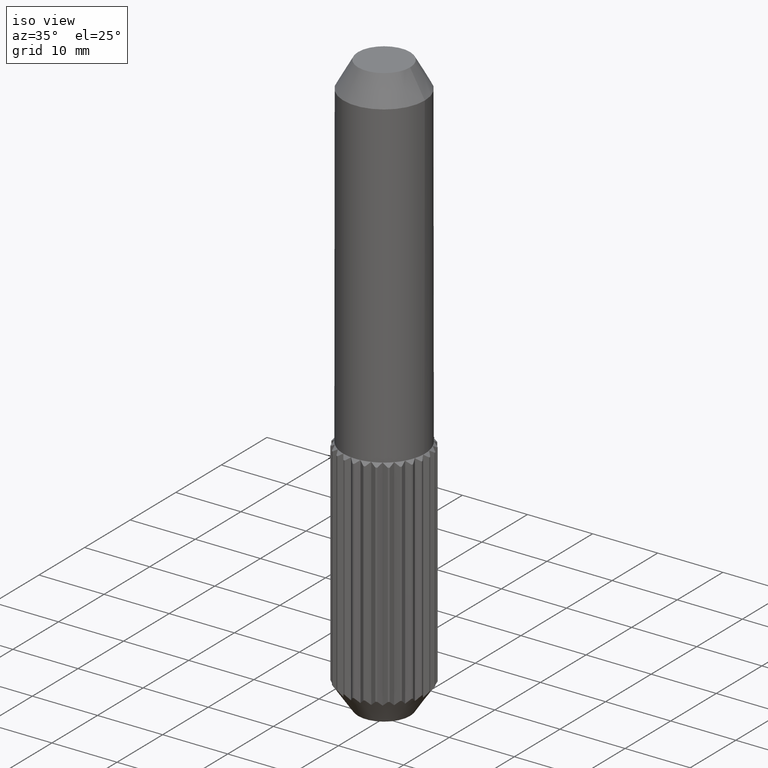
[diagram: clean part render]
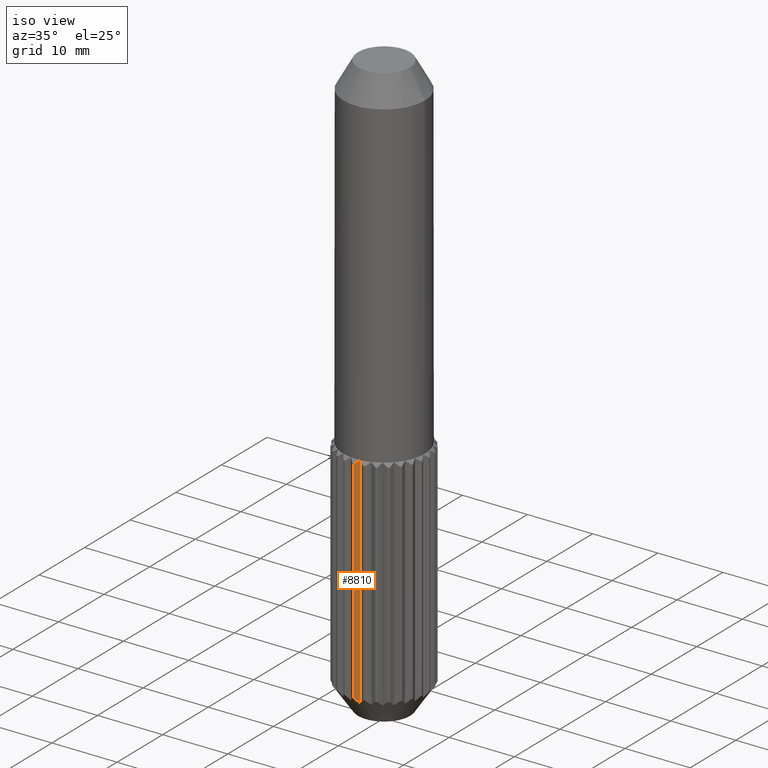
[diagram: same view with one face highlighted and labeled with its STEP entity id]
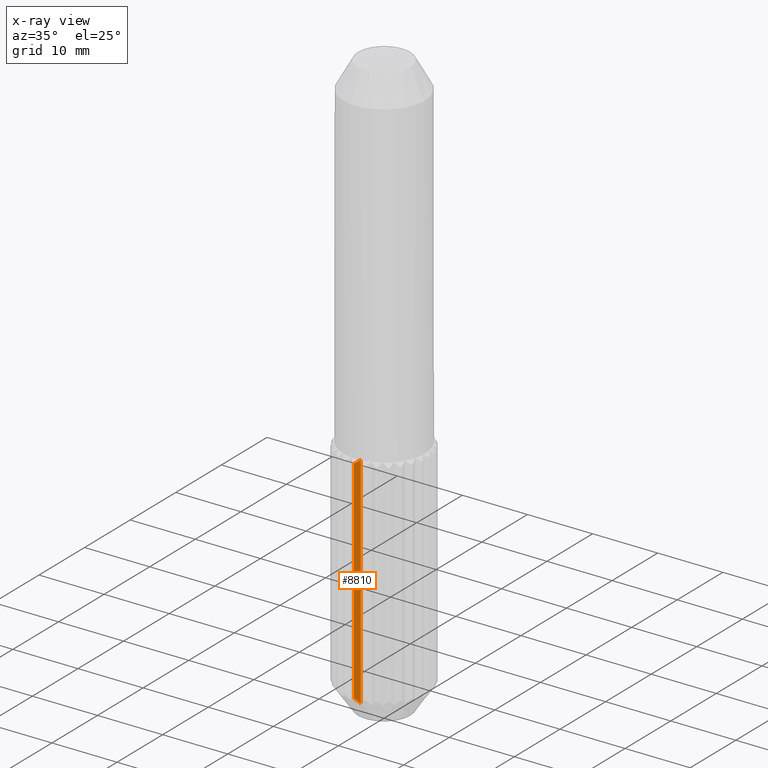
[diagram: x-ray of the same camera — body ghosted, the highlighted face saturated]
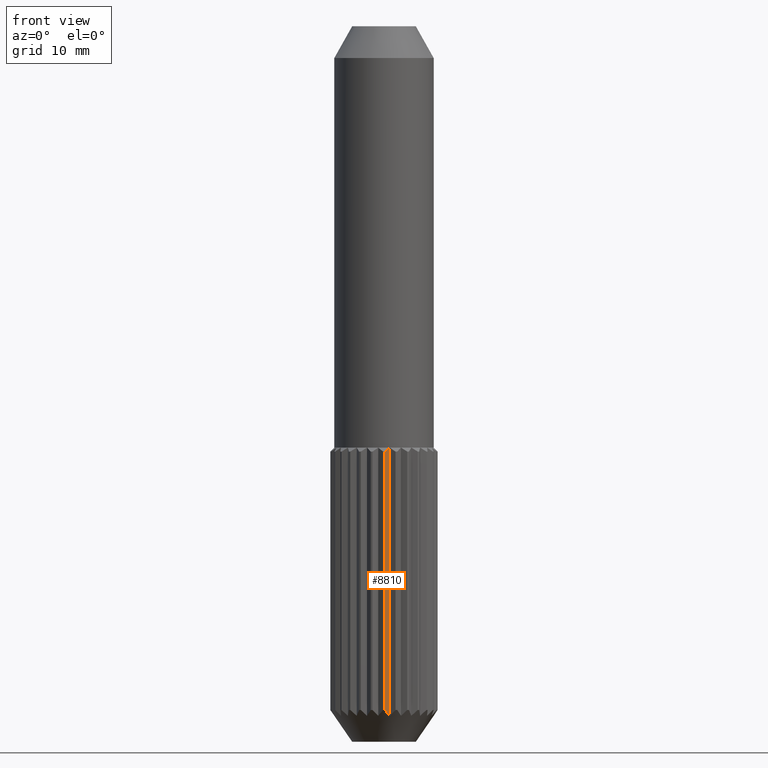
[diagram: same view with one face highlighted and labeled with its STEP entity id]
A machine part, iso view. The second image highlights one B-rep face of the part: STEP entity #8810.
The next image is the same camera in x-ray: the body ghosted, the highlighted face saturated — about 0% of this face is hidden behind the body in this view.
A second angle (front view) of the same face is appended — the face is thin or edge-on in the first view.
In plain terms, the highlighted planar face has unit normal (-0.6648, 0.7471, 0).
Its self-contained STEP definition (entity closure, byte-faithful):
#807 = VERTEX_POINT ( 'NONE', #12568 ) ;
#808 = B_SPLINE_CURVE_WITH_KNOTS ( 'NONE', 3,
 ( #12991, #5397, #11882, #10841 ),
 .UNSPECIFIED., .F., .F.,
 ( 4, 4 ),
 ( 3.484482858249427508E-07, 0.001092023992227505146 ),
 .UNSPECIFIED. ) ;
#832 = ORIENTED_EDGE ( 'NONE', *, *, #11974, .T. ) ;
#930 = DIRECTION ( 'NONE',  ( -0.6647524043319563702, 0.7470637462324638545, 0.000000000000000000 ) ) ;
#976 = CARTESIAN_POINT ( 'NONE',  ( 0.1170023595779918907, -6.748985882919980916, -8.000000000000007105 ) ) ;
#1223 = CARTESIAN_POINT ( 'NONE',  ( 0.1170023595779918907, -6.748985882919980916, -41.00000000000001421 ) ) ;
#1541 = EDGE_LOOP ( 'NONE', ( #7762, #832, #12599, #14238 ) ) ;
#2130 = VERTEX_POINT ( 'NONE', #1223 ) ;
#2690 = FACE_OUTER_BOUND ( 'NONE', #1541, .T. ) ;
#3729 = DIRECTION ( 'NONE',  ( -0.000000000000000000, 0.000000000000000000, -1.000000000000000000 ) ) ;
#4140 = EDGE_CURVE ( 'NONE', #807, #2130, #808, .T. ) ;
#4718 = CARTESIAN_POINT ( 'NONE',  ( 0.1170023595779918907, -6.748985882919980916, -8.000000000000007105 ) ) ;
#4843 = CARTESIAN_POINT ( 'NONE',  ( 0.1170023595779918907, -6.748985882919980916, -8.500000000000023093 ) ) ;
#5033 = CARTESIAN_POINT ( 'NONE',  ( 0.7252195603966690163, -6.207781937956427853, -8.000000000000007105 ) ) ;
#5397 = CARTESIAN_POINT ( 'NONE',  ( 0.5163576033449888136, -6.393631524184872461, -41.49402346405494768 ) ) ;
#5917 = DIRECTION ( 'NONE',  ( -0.000000000000000000, 0.000000000000000000, -1.000000000000000000 ) ) ;
#6054 = LINE ( 'NONE', #14322, #8670 ) ;
#6514 = EDGE_CURVE ( 'NONE', #15147, #807, #6054, .T. ) ;
#6744 = VERTEX_POINT ( 'NONE', #4843 ) ;
#7046 = AXIS2_PLACEMENT_3D ( 'NONE', #976, #930, #9250 ) ;
#7629 = CARTESIAN_POINT ( 'NONE',  ( 0.5187453562790688144, -6.391506853416299094, -8.158525612832166374 ) ) ;
#7762 = ORIENTED_EDGE ( 'NONE', *, *, #6514, .F. ) ;
#8670 = VECTOR ( 'NONE', #3729, 1000.000000000000000 ) ;
#8720 = CARTESIAN_POINT ( 'NONE',  ( 0.1170023595779918907, -6.748985882919980916, -8.500000000000023093 ) ) ;
#8810 = ADVANCED_FACE ( 'NONE', ( #2690 ), #11510, .F. ) ;
#9250 = DIRECTION ( 'NONE',  ( -0.7470637462324638545, -0.6647524043319563702, 0.000000000000000000 ) ) ;
#9915 = VECTOR ( 'NONE', #5917, 1000.000000000000000 ) ;
#10841 = CARTESIAN_POINT ( 'NONE',  ( 0.1170023595779918907, -6.748985882919980916, -41.00000000000001421 ) ) ;
#10855 = LINE ( 'NONE', #4718, #9915 ) ;
#11028 = CARTESIAN_POINT ( 'NONE',  ( 0.3164014745086915492, -6.571556524661976262, -8.326053619680884310 ) ) ;
#11256 = B_SPLINE_CURVE_WITH_KNOTS ( 'NONE', 3,
 ( #5033, #7629, #11028, #8720 ),
 .UNSPECIFIED., .F., .F.,
 ( 4, 4 ),
 ( 3.084856935025353022E-07, 0.0009557297924557945582 ),
 .UNSPECIFIED. ) ;
#11510 = PLANE ( 'NONE',  #7046 ) ;
#11882 = CARTESIAN_POINT ( 'NONE',  ( 0.3143837129821410170, -6.573351969606143541, -41.25045262597865303 ) ) ;
#11974 = EDGE_CURVE ( 'NONE', #15147, #6744, #11256, .T. ) ;
#12263 = EDGE_CURVE ( 'NONE', #6744, #2130, #10855, .T. ) ;
#12568 = CARTESIAN_POINT ( 'NONE',  ( 0.7252195603966540283, -6.207781937956430518, -41.72727272727274084 ) ) ;
#12599 = ORIENTED_EDGE ( 'NONE', *, *, #12263, .T. ) ;
#12991 = CARTESIAN_POINT ( 'NONE',  ( 0.7252195603966540283, -6.207781937956430518, -41.72727272727274084 ) ) ;
#13583 = CARTESIAN_POINT ( 'NONE',  ( 0.7252195603966690163, -6.207781937956427853, -8.000000000000007105 ) ) ;
#14238 = ORIENTED_EDGE ( 'NONE', *, *, #4140, .F. ) ;
#14322 = CARTESIAN_POINT ( 'NONE',  ( 0.7252195603966540283, -6.207781937956430518, -8.000000000000007105 ) ) ;
#15147 = VERTEX_POINT ( 'NONE', #13583 ) ;